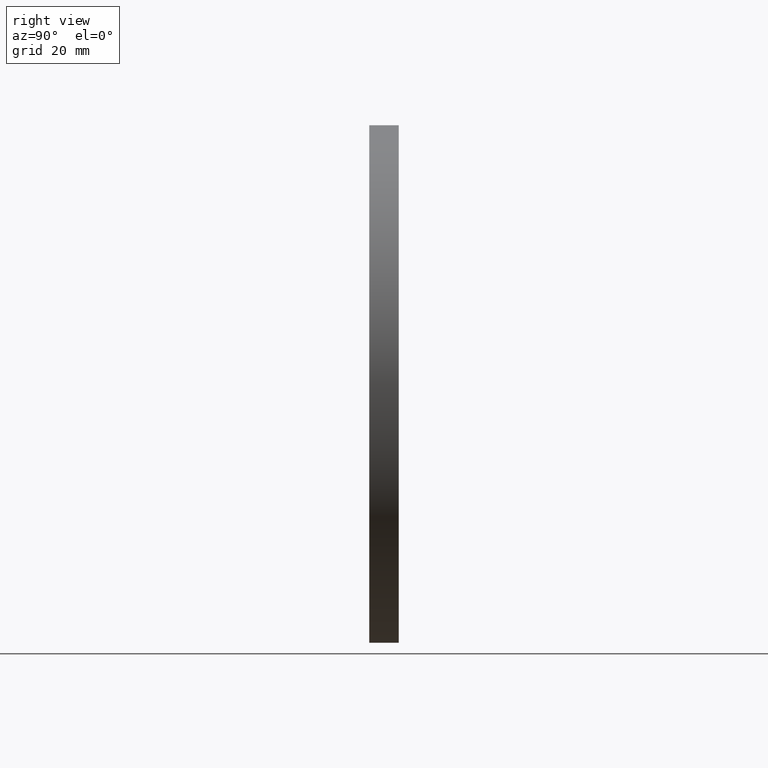
[diagram: clean part render]
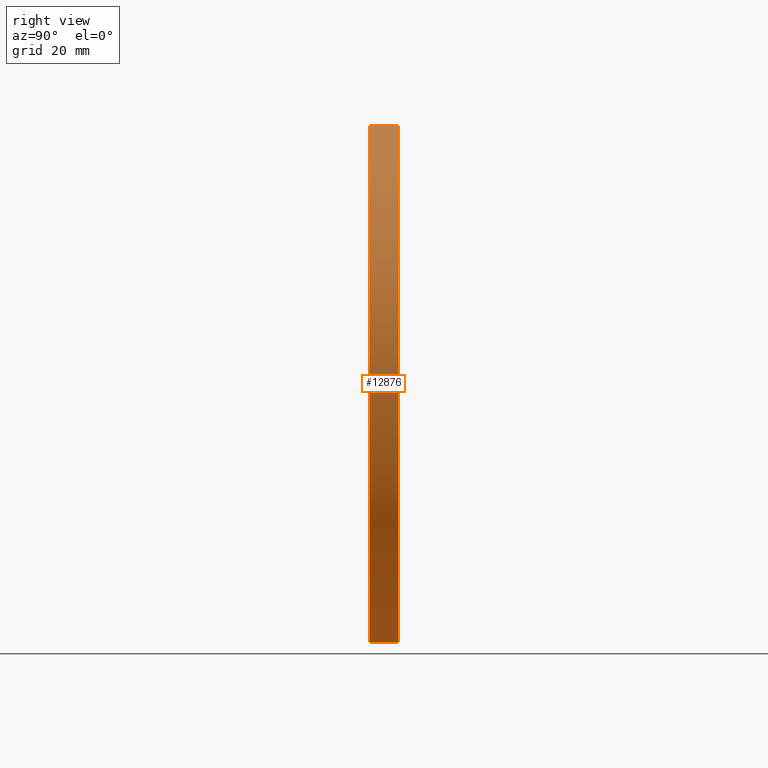
[diagram: same view with one face highlighted and labeled with its STEP entity id]
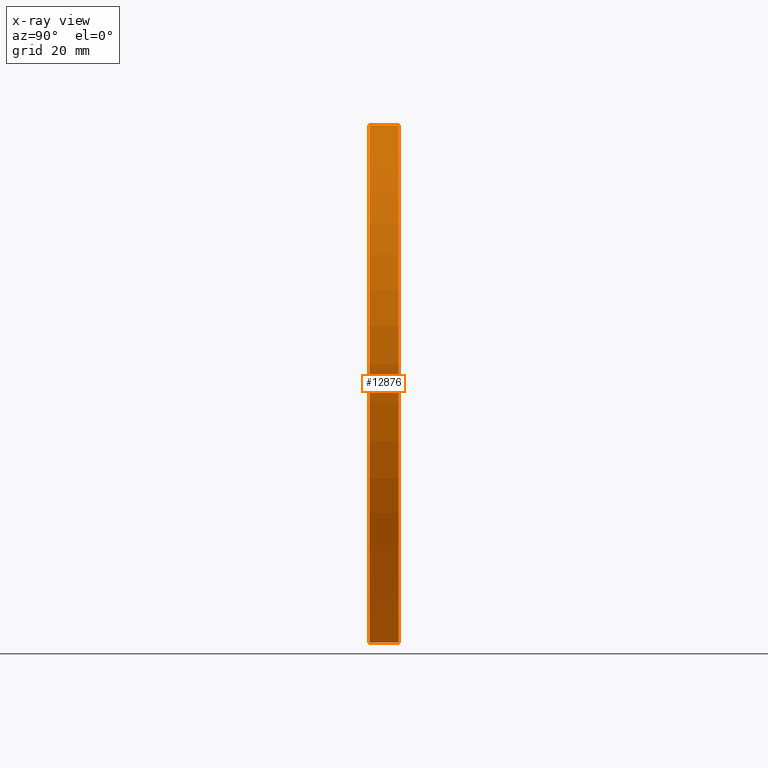
[diagram: x-ray of the same camera — body ghosted, the highlighted face saturated]
A machine part, right view. The second image highlights one B-rep face of the part: STEP entity #12876.
The next image is the same camera in x-ray: the body ghosted, the highlighted face saturated — about 0% of this face is hidden behind the body in this view.
In plain terms, the highlighted cylindrical surface (partial cylindrical patch) has radius 70 mm, axis along (-0, -1, -0).
Its self-contained STEP definition (entity closure, byte-faithful):
#269 = DIRECTION ( 'NONE',  ( 0.000000000000000000, 1.000000000000000000, 0.000000000000000000 ) ) ;
#396 = CARTESIAN_POINT ( 'NONE',  ( 0.000000000000000000, -4.000000000000000000, -70.00000000000001421 ) ) ;
#598 = EDGE_CURVE ( 'NONE', #5165, #2871, #9644, .T. ) ;
#1546 = DIRECTION ( 'NONE',  ( 0.000000000000000000, 0.000000000000000000, 1.000000000000000000 ) ) ;
#2074 = ORIENTED_EDGE ( 'NONE', *, *, #598, .F. ) ;
#2545 = DIRECTION ( 'NONE',  ( 0.000000000000000000, 0.000000000000000000, -1.000000000000000000 ) ) ;
#2598 = DIRECTION ( 'NONE',  ( -0.000000000000000000, -1.000000000000000000, -0.000000000000000000 ) ) ;
#2871 = VERTEX_POINT ( 'NONE', #396 ) ;
#3612 = VERTEX_POINT ( 'NONE', #3908 ) ;
#3742 = VECTOR ( 'NONE', #12297, 1000.000000000000000 ) ;
#3908 = CARTESIAN_POINT ( 'NONE',  ( 8.572527594031474570E-15, -4.000000000000000000, 70.00000000000001421 ) ) ;
#3944 = VECTOR ( 'NONE', #4025, 1000.000000000000000 ) ;
#3961 = CYLINDRICAL_SURFACE ( 'NONE', #13245, 70.00000000000001421 ) ;
#4025 = DIRECTION ( 'NONE',  ( -0.000000000000000000, -1.000000000000000000, -0.000000000000000000 ) ) ;
#4605 = ORIENTED_EDGE ( 'NONE', *, *, #5193, .T. ) ;
#5165 = VERTEX_POINT ( 'NONE', #10919 ) ;
#5193 = EDGE_CURVE ( 'NONE', #3612, #2871, #9579, .T. ) ;
#6041 = CARTESIAN_POINT ( 'NONE',  ( 8.572527594031474570E-15, 4.000000000000000000, 70.00000000000001421 ) ) ;
#6162 = CIRCLE ( 'NONE', #11165, 70.00000000000001421 ) ;
#6828 = VERTEX_POINT ( 'NONE', #13499 ) ;
#7896 = DIRECTION ( 'NONE',  ( 0.000000000000000000, 1.000000000000000000, 0.000000000000000000 ) ) ;
#8490 = ORIENTED_EDGE ( 'NONE', *, *, #12251, .F. ) ;
#8932 = DIRECTION ( 'NONE',  ( 0.000000000000000000, 0.000000000000000000, 1.000000000000000000 ) ) ;
#9030 = CARTESIAN_POINT ( 'NONE',  ( 0.000000000000000000, 4.000000000000000000, -70.00000000000001421 ) ) ;
#9579 = CIRCLE ( 'NONE', #12228, 70.00000000000001421 ) ;
#9644 = LINE ( 'NONE', #9030, #3742 ) ;
#10010 = FACE_OUTER_BOUND ( 'NONE', #11174, .T. ) ;
#10919 = CARTESIAN_POINT ( 'NONE',  ( 0.000000000000000000, 4.000000000000000000, -70.00000000000001421 ) ) ;
#11165 = AXIS2_PLACEMENT_3D ( 'NONE', #12236, #269, #8932 ) ;
#11174 = EDGE_LOOP ( 'NONE', ( #8490, #13857, #4605, #2074 ) ) ;
#11204 = CARTESIAN_POINT ( 'NONE',  ( 0.000000000000000000, -4.000000000000000000, 0.000000000000000000 ) ) ;
#12054 = LINE ( 'NONE', #6041, #3944 ) ;
#12228 = AXIS2_PLACEMENT_3D ( 'NONE', #11204, #7896, #1546 ) ;
#12236 = CARTESIAN_POINT ( 'NONE',  ( 0.000000000000000000, 4.000000000000000000, 0.000000000000000000 ) ) ;
#12251 = EDGE_CURVE ( 'NONE', #6828, #5165, #6162, .T. ) ;
#12297 = DIRECTION ( 'NONE',  ( -0.000000000000000000, -1.000000000000000000, -0.000000000000000000 ) ) ;
#12876 = ADVANCED_FACE ( 'NONE', ( #10010 ), #3961, .T. ) ;
#13245 = AXIS2_PLACEMENT_3D ( 'NONE', #13348, #2598, #2545 ) ;
#13348 = CARTESIAN_POINT ( 'NONE',  ( 0.000000000000000000, 4.000000000000000000, 0.000000000000000000 ) ) ;
#13499 = CARTESIAN_POINT ( 'NONE',  ( 8.572527594031474570E-15, 4.000000000000000000, 70.00000000000001421 ) ) ;
#13707 = EDGE_CURVE ( 'NONE', #6828, #3612, #12054, .T. ) ;
#13857 = ORIENTED_EDGE ( 'NONE', *, *, #13707, .T. ) ;